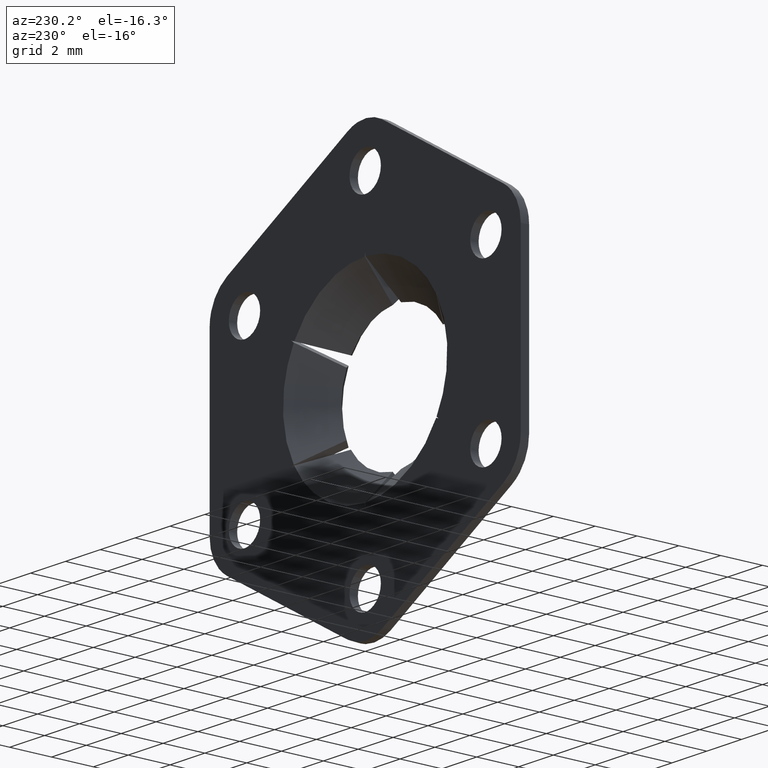
[diagram: clean part render]
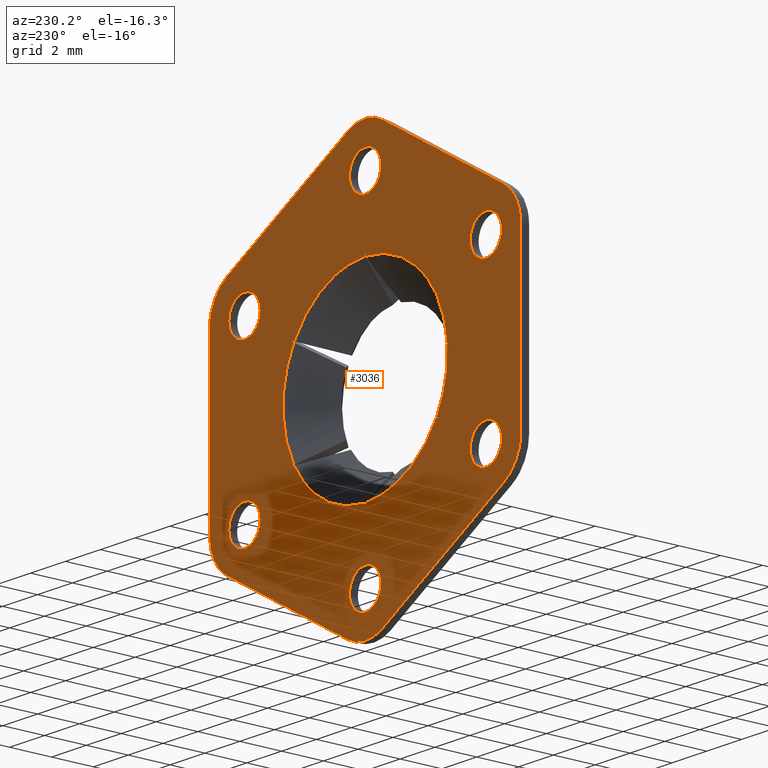
[diagram: same view with one face highlighted and labeled with its STEP entity id]
A machine part, auxiliary view. The second image highlights one B-rep face of the part: STEP entity #3036.
In plain terms, the highlighted face is a freeform B-spline surface patch.
Its self-contained STEP definition (entity closure, byte-faithful):
#36=CARTESIAN_POINT('',(7.591752890061908,4.076600E-017,4.608031211718937));
#37=VERTEX_POINT('',#36);
#43=CARTESIAN_POINT('',(7.828203230403200,0.0,4.000000234346843));
#44=VERTEX_POINT('',#43);
#45=CARTESIAN_POINT('',(7.828203230403200,0.0,4.000000234346843));
#46=CARTESIAN_POINT('',(7.828226303714586,5.361907E-018,4.079973889481491));
#47=CARTESIAN_POINT('',(7.807214864985792,1.585158E-017,4.236428944386033));
#48=CARTESIAN_POINT('',(7.721082646510603,2.974002E-017,4.443577131049415));
#49=CARTESIAN_POINT('',(7.636390975128075,3.750077E-017,4.559329825514233));
#50=CARTESIAN_POINT('',(7.591752890061908,4.076600E-017,4.608031211718937));
#51=B_SPLINE_CURVE_WITH_KNOTS('',3,(#45,#46,#47,#48,#49,#50),.UNSPECIFIED.,.F.,.U.,(4,1,1,4),(6.082399E-009,0.239916343688792,0.469399912768028,0.667591942724813),.UNSPECIFIED.);
#52=EDGE_CURVE('',#44,#37,#51,.T.);
#54=CARTESIAN_POINT('',(6.928203230403231,0.0,3.100000000264096));
#55=VERTEX_POINT('',#54);
#56=CARTESIAN_POINT('',(6.928203230403231,0.0,3.100000000264096));
#57=CARTESIAN_POINT('',(7.009200202013038,0.0,3.099974343736401));
#58=CARTESIAN_POINT('',(7.171173352917255,0.0,3.122011545478920));
#59=CARTESIAN_POINT('',(7.396557710784607,0.0,3.218596526401624));
#60=CARTESIAN_POINT('',(7.573482655878819,0.0,3.360221876556675));
#61=CARTESIAN_POINT('',(7.693217112072676,0.0,3.515636021474628));
#62=CARTESIAN_POINT('',(7.771307147974531,0.0,3.670765253618833));
#63=CARTESIAN_POINT('',(7.817668737169839,0.0,3.830649972684198));
#64=CARTESIAN_POINT('',(7.828207806149314,0.0,3.944776752768646));
#65=CARTESIAN_POINT('',(7.828203230403200,0.0,4.000000234346843));
#66=B_SPLINE_CURVE_WITH_KNOTS('',3,(#56,#57,#58,#59,#60,#61,#62,#63,#64,#65),.UNSPECIFIED.,.F.,.U.,(4,1,1,1,1,1,1,4),(0.000000027766262,0.242984109180347,0.485968517856268,0.728946563611677,0.916709146844662,1.071339280978085,1.248054781481872,1.413725696523559),.UNSPECIFIED.);
#67=EDGE_CURVE('',#55,#44,#66,.T.);
#69=CARTESIAN_POINT('',(6.264653570744552,1.821460E-017,3.391968788809254));
#70=VERTEX_POINT('',#69);
#71=CARTESIAN_POINT('',(6.264653570744552,1.821460E-017,3.391968788809254));
#72=CARTESIAN_POINT('',(6.314527965671008,1.684553E-017,3.337524955148006));
#73=CARTESIAN_POINT('',(6.439674756081360,1.341022E-017,3.230819742792361));
#74=CARTESIAN_POINT('',(6.667841585236905,7.146989E-018,3.125085262540399));
#75=CARTESIAN_POINT('',(6.842707922609193,2.346867E-018,3.099975680011092));
#76=CARTESIAN_POINT('',(6.928203230403231,0.0,3.100000000264096));
#77=B_SPLINE_CURVE_WITH_KNOTS('',3,(#71,#72,#73,#74,#75,#76),.UNSPECIFIED.,.F.,.U.,(4,1,1,4),(8.272962E-009,0.221508772568525,0.489648719146423,0.746133515676751),.UNSPECIFIED.);
#78=EDGE_CURVE('',#70,#55,#77,.T.);
#169=CARTESIAN_POINT('',(6.028203230403260,0.0,3.999999766181345));
#170=VERTEX_POINT('',#169);
#171=CARTESIAN_POINT('',(6.028203230403260,0.0,3.999999766181345));
#172=CARTESIAN_POINT('',(6.028130093634919,3.229339E-018,3.892199516854360));
#173=CARTESIAN_POINT('',(6.058542747506334,8.227222E-018,3.725362527811360));
#174=CARTESIAN_POINT('',(6.157428061960746,1.423569E-017,3.524790688751843));
#175=CARTESIAN_POINT('',(6.227064252123654,1.698599E-017,3.432981558750776));
#176=CARTESIAN_POINT('',(6.264653570744552,1.821460E-017,3.391968788809254));
#177=B_SPLINE_CURVE_WITH_KNOTS('',3,(#171,#172,#173,#174,#175,#176),.UNSPECIFIED.,.F.,.U.,(4,1,1,4),(6.081782E-009,0.323368925552720,0.500693955857128,0.667591942724812),.UNSPECIFIED.);
#178=EDGE_CURVE('',#170,#70,#177,.T.);
#180=CARTESIAN_POINT('',(6.928203230403231,0.0,4.900000000264095));
#181=VERTEX_POINT('',#180);
#182=CARTESIAN_POINT('',(6.928203230403231,0.0,4.900000000264095));
#183=CARTESIAN_POINT('',(6.828793367875496,0.0,4.900058111049996));
#184=CARTESIAN_POINT('',(6.666846583298053,0.0,4.872883822530298));
#185=CARTESIAN_POINT('',(6.468856534640187,0.0,4.780693777177579));
#186=CARTESIAN_POINT('',(6.313725357323717,0.0,4.667128834109668));
#187=CARTESIAN_POINT('',(6.193336716690165,0.0,4.530966411007047));
#188=CARTESIAN_POINT('',(6.094973663917792,0.0,4.357348575796756));
#189=CARTESIAN_POINT('',(6.040087144640501,0.0,4.184079914210815));
#190=CARTESIAN_POINT('',(6.028200528103738,0.0,4.055222595539417));
#191=CARTESIAN_POINT('',(6.028203230403260,0.0,3.999999766181345));
#192=B_SPLINE_CURVE_WITH_KNOTS('',3,(#182,#183,#184,#185,#186,#187,#188,#189,#190,#191),.UNSPECIFIED.,.F.,.U.,(4,1,1,1,1,1,1,4),(0.000000027770033,0.298207562280992,0.485968517858671,0.651640536808030,0.872533776876375,1.027159469077783,1.248054781482359,1.413725696523557),.UNSPECIFIED.);
#193=EDGE_CURVE('',#181,#170,#192,.T.);
#195=CARTESIAN_POINT('',(7.591752890061908,4.076600E-017,4.608031211718937));
#196=CARTESIAN_POINT('',(7.528775566729278,3.689691E-017,4.676834702884034));
#197=CARTESIAN_POINT('',(7.418063128604507,3.009515E-017,4.765085535586538));
#198=CARTESIAN_POINT('',(7.192400725409483,1.623130E-017,4.871446264298736));
#199=CARTESIAN_POINT('',(7.037034050511439,6.686157E-018,4.900103129612380));
#200=CARTESIAN_POINT('',(6.928203230403231,0.0,4.900000000264095));
#201=B_SPLINE_CURVE_WITH_KNOTS('',3,(#195,#196,#197,#198,#199,#200),.UNSPECIFIED.,.F.,.U.,(4,1,1,4),(8.272381E-009,0.279800207099282,0.419696351711573,0.746133515676750),.UNSPECIFIED.);
#202=EDGE_CURVE('',#37,#181,#201,.T.);
#239=CARTESIAN_POINT('',(0.663549659789859,-6.071532E-018,8.608031211713040));
#240=VERTEX_POINT('',#239);
#246=CARTESIAN_POINT('',(0.900000000131150,0.0,8.000000234340950));
#247=VERTEX_POINT('',#246);
#248=CARTESIAN_POINT('',(0.900000000131150,0.0,8.000000234340950));
#249=CARTESIAN_POINT('',(0.900036383603328,-8.680583E-019,8.086931570724715));
#250=CARTESIAN_POINT('',(0.880190719680678,-2.221871E-018,8.222508530476116));
#251=CARTESIAN_POINT('',(0.799272910767948,-4.299765E-018,8.430598334603765));
#252=CARTESIAN_POINT('',(0.722306524939986,-5.431789E-018,8.543964388938841));
#253=CARTESIAN_POINT('',(0.663549659789859,-6.071532E-018,8.608031211713040));
#254=B_SPLINE_CURVE_WITH_KNOTS('',3,(#248,#249,#250,#251,#252,#253),.UNSPECIFIED.,.F.,.U.,(4,1,1,4),(6.081780E-009,0.260778638901012,0.406813309907971,0.667591942724816),.UNSPECIFIED.);
#255=EDGE_CURVE('',#247,#240,#254,.T.);
#257=CARTESIAN_POINT('',(1.311804E-010,0.0,7.100000000258200));
#258=VERTEX_POINT('',#257);
#259=CARTESIAN_POINT('',(1.311804E-010,0.0,7.100000000258200));
#260=CARTESIAN_POINT('',(0.080996012322714,0.0,7.099975049281043));
#261=CARTESIAN_POINT('',(0.242974818309033,0.0,7.122008955398664));
#262=CARTESIAN_POINT('',(0.430781780634713,0.0,7.202509696703170));
#263=CARTESIAN_POINT('',(0.603493532361702,0.0,7.322564954549393));
#264=CARTESIAN_POINT('',(0.737734980733604,0.0,7.467064753624744));
#265=CARTESIAN_POINT('',(0.838985603618570,0.0,7.656555514775269));
#266=CARTESIAN_POINT('',(0.889464066262825,0.0,7.830650374746120));
#267=CARTESIAN_POINT('',(0.900004938679817,0.0,7.944776673103982));
#268=CARTESIAN_POINT('',(0.900000000131150,0.0,8.000000234340950));
#269=B_SPLINE_CURVE_WITH_KNOTS('',3,(#259,#260,#261,#262,#263,#264,#265,#266,#267,#268),.UNSPECIFIED.,.F.,.U.,(4,1,1,1,1,1,1,4),(0.000000027770838,0.242984109183982,0.485968517859080,0.607466950547594,0.872533776876687,1.071339280979073,1.248054781482304,1.413725696523545),.UNSPECIFIED.);
#270=EDGE_CURVE('',#258,#247,#269,.T.);
#272=CARTESIAN_POINT('',(-0.663549659527498,1.821460E-017,7.391968788803359));
#273=VERTEX_POINT('',#272);
#274=CARTESIAN_POINT('',(-0.663549659527498,1.821460E-017,7.391968788803359));
#275=CARTESIAN_POINT('',(-0.600573490494556,1.648589E-017,7.323164427149681));
#276=CARTESIAN_POINT('',(-0.486783280776631,1.336232E-017,7.232461851563873));
#277=CARTESIAN_POINT('',(-0.260318605475891,7.145808E-018,7.127512567533784));
#278=CARTESIAN_POINT('',(-0.104940425645456,2.880640E-018,7.099911376751241));
#279=CARTESIAN_POINT('',(1.311804E-010,0.0,7.100000000258200));
#280=B_SPLINE_CURVE_WITH_KNOTS('',3,(#274,#275,#276,#277,#278,#279),.UNSPECIFIED.,.F.,.U.,(4,1,1,4),(8.272651E-009,0.279800207099393,0.431356854696645,0.746133515676752),.UNSPECIFIED.);
#281=EDGE_CURVE('',#273,#258,#280,.T.);
#372=CARTESIAN_POINT('',(-0.899999999868789,0.0,7.999999766175449));
#373=VERTEX_POINT('',#372);
#374=CARTESIAN_POINT('',(-0.899999999868789,0.0,7.999999766175449));
#375=CARTESIAN_POINT('',(-0.900004994740617,1.666568E-018,7.944367187007805));
#376=CARTESIAN_POINT('',(-0.889006013258594,5.207923E-018,7.826151333351548));
#377=CARTESIAN_POINT('',(-0.825099043394559,1.163141E-017,7.611725455320543));
#378=CARTESIAN_POINT('',(-0.734091115296245,1.591213E-017,7.468828490830533));
#379=CARTESIAN_POINT('',(-0.663549659527498,1.821460E-017,7.391968788803359));
#380=B_SPLINE_CURVE_WITH_KNOTS('',3,(#374,#375,#376,#377,#378,#379),.UNSPECIFIED.,.F.,.U.,(4,1,1,4),(6.081824E-009,0.166897987535654,0.354656526084924,0.667591942724811),.UNSPECIFIED.);
#381=EDGE_CURVE('',#373,#273,#380,.T.);
#383=CARTESIAN_POINT('',(1.311804E-010,0.0,8.900000000258199));
#384=VERTEX_POINT('',#383);
#385=CARTESIAN_POINT('',(1.311804E-010,0.0,8.900000000258199));
#386=CARTESIAN_POINT('',(-0.099410252276266,0.0,8.900059071814132));
#387=CARTESIAN_POINT('',(-0.261354937998547,0.0,8.872880305435579));
#388=CARTESIAN_POINT('',(-0.469420080120064,0.0,8.776012729051466));
#389=CARTESIAN_POINT('',(-0.605016838883685,0.0,8.672843776159761));
#390=CARTESIAN_POINT('',(-0.714780353702386,0.0,8.553209783012042));
#391=CARTESIAN_POINT('',(-0.800259898774316,0.0,8.423576720045290));
#392=CARTESIAN_POINT('',(-0.878133478280837,0.0,8.235599407023075));
#393=CARTESIAN_POINT('',(-0.900036893071894,0.0,8.088361045971118));
#394=CARTESIAN_POINT('',(-0.899999999868789,0.0,7.999999766175449));
#395=B_SPLINE_CURVE_WITH_KNOTS('',3,(#385,#386,#387,#388,#389,#390,#391,#392,#393,#394),.UNSPECIFIED.,.F.,.U.,(4,1,1,1,1,1,1,4),(0.000000027770339,0.298207562281062,0.485968517858708,0.684779224785175,0.806258816291269,0.971934389374804,1.148654169148012,1.413725696523546),.UNSPECIFIED.);
#396=EDGE_CURVE('',#384,#373,#395,.T.);
#398=CARTESIAN_POINT('',(0.663549659789859,-6.071532E-018,8.608031211713040));
#399=CARTESIAN_POINT('',(0.611055432850996,-5.591206E-018,8.665349510737714));
#400=CARTESIAN_POINT('',(0.509086234941145,-4.658180E-018,8.751104237003203));
#401=CARTESIAN_POINT('',(0.356734998661933,-3.264154E-018,8.830269655613433));
#402=CARTESIAN_POINT('',(0.194295111418819,-1.777816E-018,8.884801263457058));
#403=CARTESIAN_POINT('',(0.077724879170556,-7.111888E-019,8.900021594727663));
#404=CARTESIAN_POINT('',(1.311804E-010,0.0,8.900000000258199));
#405=B_SPLINE_CURVE_WITH_KNOTS('',3,(#398,#399,#400,#401,#402,#403,#404),.UNSPECIFIED.,.F.,.U.,(4,1,1,1,4),(8.272544E-009,0.233167996927774,0.396380162253020,0.512965527026716,0.746133515676751),.UNSPECIFIED.);
#406=EDGE_CURVE('',#240,#384,#405,.T.);
#443=CARTESIAN_POINT('',(-6.264653570175522,1.821460E-017,4.608031210245241));
#444=VERTEX_POINT('',#443);
#450=CARTESIAN_POINT('',(-6.028203229834231,0.0,4.000000232873148));
#451=VERTEX_POINT('',#450);
#452=CARTESIAN_POINT('',(-6.028203229834231,0.0,4.000000232873148));
#453=CARTESIAN_POINT('',(-6.028139515492588,2.916813E-018,4.097367897399532));
#454=CARTESIAN_POINT('',(-6.051574041359181,7.186077E-018,4.239882452400351));
#455=CARTESIAN_POINT('',(-6.138457560671259,1.334397E-017,4.445442334055876));
#456=CARTESIAN_POINT('',(-6.210602850755835,1.644879E-017,4.549085797519957));
#457=CARTESIAN_POINT('',(-6.264653570175522,1.821460E-017,4.608031210245241));
#458=B_SPLINE_CURVE_WITH_KNOTS('',3,(#452,#453,#454,#455,#456,#457),.UNSPECIFIED.,.F.,.U.,(4,1,1,4),(6.081437E-009,0.292073963886271,0.427675605114187,0.667591942724817),.UNSPECIFIED.);
#459=EDGE_CURVE('',#451,#444,#458,.T.);
#461=CARTESIAN_POINT('',(-6.928203229834200,0.0,3.099999998790400));
#462=VERTEX_POINT('',#461);
#463=CARTESIAN_POINT('',(-6.928203229834200,0.0,3.099999998790400));
#464=CARTESIAN_POINT('',(-6.828797073767281,0.0,3.099947257377678));
#465=CARTESIAN_POINT('',(-6.648432418096616,0.0,3.130187645367318));
#466=CARTESIAN_POINT('',(-6.429418098877408,0.0,3.240448562621806));
#467=CARTESIAN_POINT('',(-6.285730706599413,0.0,3.362895117395828));
#468=CARTESIAN_POINT('',(-6.182686701331696,0.0,3.488452457703103));
#469=CARTESIAN_POINT('',(-6.105317044069849,0.0,3.623088948112127));
#470=CARTESIAN_POINT('',(-6.044108530390512,0.0,3.797522331387572));
#471=CARTESIAN_POINT('',(-6.028184067994329,0.0,3.926367760070296));
#472=CARTESIAN_POINT('',(-6.028203229834231,0.0,4.000000232873148));
#473=B_SPLINE_CURVE_WITH_KNOTS('',3,(#463,#464,#465,#466,#467,#468,#469,#470,#471,#472),.UNSPECIFIED.,.F.,.U.,(4,1,1,1,1,1,1,4),(0.000000027770395,0.298207562281248,0.541192824811446,0.728946563613698,0.861483921735026,1.027159469077992,1.192831770812571,1.413725696523545),.UNSPECIFIED.);
#474=EDGE_CURVE('',#462,#451,#473,.T.);
#476=CARTESIAN_POINT('',(-7.591752889492879,4.076600E-017,3.391968787335558));
#477=VERTEX_POINT('',#476);
#478=CARTESIAN_POINT('',(-7.591752889492879,4.076600E-017,3.391968787335558));
#479=CARTESIAN_POINT('',(-7.518302047017945,3.625346E-017,3.311670129914432));
#480=CARTESIAN_POINT('',(-7.370150024161867,2.715155E-017,3.199786547191172));
#481=CARTESIAN_POINT('',(-7.134161885685534,1.265333E-017,3.115467283271009));
#482=CARTESIAN_POINT('',(-6.994267147218354,4.058719E-018,3.099989482479001));
#483=CARTESIAN_POINT('',(-6.928203229834200,0.0,3.099999998790400));
#484=B_SPLINE_CURVE_WITH_KNOTS('',3,(#478,#479,#480,#481,#482,#483),.UNSPECIFIED.,.F.,.U.,(4,1,1,4),(8.272227E-009,0.326437172242251,0.547941544007442,0.746133515676754),.UNSPECIFIED.);
#485=EDGE_CURVE('',#477,#462,#484,.T.);
#577=CARTESIAN_POINT('',(-7.828203229834171,0.0,3.999999764707650));
#578=VERTEX_POINT('',#577);
#579=CARTESIAN_POINT('',(-7.828203229834171,0.0,3.999999764707650));
#580=CARTESIAN_POINT('',(-7.828232561707650,5.362042E-018,3.920024099144150));
#581=CARTESIAN_POINT('',(-7.812799199462688,1.305367E-017,3.805302391370699));
#582=CARTESIAN_POINT('',(-7.741747676259862,2.721951E-017,3.594016646711108));
#583=CARTESIAN_POINT('',(-7.664649350911640,3.544099E-017,3.471392052397096));
#584=CARTESIAN_POINT('',(-7.591752889492879,4.076600E-017,3.391968787335558));
#585=B_SPLINE_CURVE_WITH_KNOTS('',3,(#579,#580,#581,#582,#583,#584),.UNSPECIFIED.,.F.,.U.,(4,1,1,4),(6.081818E-009,0.239916343688644,0.344223023249606,0.667591942724814),.UNSPECIFIED.);
#586=EDGE_CURVE('',#578,#477,#585,.T.);
#588=CARTESIAN_POINT('',(-6.928203229834200,0.0,4.899999998790400));
#589=VERTEX_POINT('',#588);
#590=CARTESIAN_POINT('',(-6.928203229834200,0.0,4.899999998790400));
#591=CARTESIAN_POINT('',(-7.027614320416054,0.0,4.900057686558056));
#592=CARTESIAN_POINT('',(-7.174834332604654,0.0,4.875352519905449));
#593=CARTESIAN_POINT('',(-7.357650424685486,0.0,4.795623096818295));
#594=CARTESIAN_POINT('',(-7.475344316268823,0.0,4.719053151746222));
#595=CARTESIAN_POINT('',(-7.607333461136070,0.0,4.600936229496129));
#596=CARTESIAN_POINT('',(-7.717152264970999,0.0,4.450931140301199));
#597=CARTESIAN_POINT('',(-7.806334226250788,0.0,4.235598638172008));
#598=CARTESIAN_POINT('',(-7.828240989330539,0.0,4.088360613727382));
#599=CARTESIAN_POINT('',(-7.828203229834171,0.0,3.999999764707650));
#600=B_SPLINE_CURVE_WITH_KNOTS('',3,(#590,#591,#592,#593,#594,#595,#596,#597,#598,#599),.UNSPECIFIED.,.F.,.U.,(4,1,1,1,1,1,1,4),(0.000000027766078,0.298207562277850,0.441791596325794,0.596416978887256,0.717899139419897,0.971934389373986,1.148654169147614,1.413725696523561),.UNSPECIFIED.);
#601=EDGE_CURVE('',#589,#578,#600,.T.);
#603=CARTESIAN_POINT('',(-6.264653570175522,1.821460E-017,4.608031210245241));
#604=CARTESIAN_POINT('',(-6.309276712429864,1.698968E-017,4.656747525210337));
#605=CARTESIAN_POINT('',(-6.397554229851052,1.456644E-017,4.733976136873334));
#606=CARTESIAN_POINT('',(-6.549446075285329,1.039697E-017,4.821880922001681));
#607=CARTESIAN_POINT('',(-6.722248446569147,5.653508E-018,4.883649369670212));
#608=CARTESIAN_POINT('',(-6.854366315485861,2.026841E-018,4.900016319102174));
#609=CARTESIAN_POINT('',(-6.928203229834200,0.0,4.899999998790400));
#610=B_SPLINE_CURVE_WITH_KNOTS('',3,(#603,#604,#605,#606,#607,#608,#609),.UNSPECIFIED.,.F.,.U.,(4,1,1,1,4),(8.272561E-009,0.198191979946695,0.349753361703568,0.524624751384262,0.746133515676751),.UNSPECIFIED.);
#611=EDGE_CURVE('',#444,#589,#610,.T.);
#648=CARTESIAN_POINT('',(-6.264653569310792,1.821460E-017,-3.391968788833170));
#649=VERTEX_POINT('',#648);
#655=CARTESIAN_POINT('',(-6.028203228969501,0.0,-3.999999766205264));
#656=VERTEX_POINT('',#655);
#657=CARTESIAN_POINT('',(-6.028203228969501,0.0,-3.999999766205264));
#658=CARTESIAN_POINT('',(-6.028159402752834,2.708388E-018,-3.909589628787769));
#659=CARTESIAN_POINT('',(-6.047225650441207,6.457280E-018,-3.784445898501451));
#660=CARTESIAN_POINT('',(-6.125606974663613,1.270853E-017,-3.575769775986319));
#661=CARTESIAN_POINT('',(-6.198824104429429,1.606538E-017,-3.463712864679082));
#662=CARTESIAN_POINT('',(-6.264653569310792,1.821460E-017,-3.391968788833170));
#663=B_SPLINE_CURVE_WITH_KNOTS('',3,(#657,#658,#659,#660,#661,#662),.UNSPECIFIED.,.F.,.U.,(4,1,1,4),(6.081591E-009,0.271211822270903,0.375517984913533,0.667591942724820),.UNSPECIFIED.);
#664=EDGE_CURVE('',#656,#649,#663,.T.);
#666=CARTESIAN_POINT('',(-6.928203228969470,0.0,-4.900000000288010));
#667=VERTEX_POINT('',#666);
#668=CARTESIAN_POINT('',(-6.928203228969470,0.0,-4.900000000288010));
#669=CARTESIAN_POINT('',(-6.828796133449349,0.0,-4.900059241437144));
#670=CARTESIAN_POINT('',(-6.648433469342184,0.0,-4.869804401548783));
#671=CARTESIAN_POINT('',(-6.439370346822650,0.0,-4.764562755811157));
#672=CARTESIAN_POINT('',(-6.305136501135786,0.0,-4.654359528506936));
#673=CARTESIAN_POINT('',(-6.196830636797871,0.0,-4.533403360469902));
#674=CARTESIAN_POINT('',(-6.114060394195139,0.0,-4.397202821919962));
#675=CARTESIAN_POINT('',(-6.045722680002704,0.0,-4.209834531143814));
#676=CARTESIAN_POINT('',(-6.028173238127176,0.0,-4.080997066211022));
#677=CARTESIAN_POINT('',(-6.028203228969501,0.0,-3.999999766205264));
#678=B_SPLINE_CURVE_WITH_KNOTS('',3,(#668,#669,#670,#671,#672,#673,#674,#675,#676,#677),.UNSPECIFIED.,.F.,.U.,(4,1,1,1,1,1,1,4),(0.000000027768896,0.298207562279927,0.541192824810404,0.695826477561995,0.817309461464141,1.027159469077636,1.170742960576889,1.413725696523555),.UNSPECIFIED.);
#679=EDGE_CURVE('',#667,#656,#678,.T.);
#681=CARTESIAN_POINT('',(-7.591752888628148,4.076600E-017,-4.608031211742851));
#682=VERTEX_POINT('',#681);
#683=CARTESIAN_POINT('',(-7.591752888628148,4.076600E-017,-4.608031211742851));
#684=CARTESIAN_POINT('',(-7.518302259486551,3.625347E-017,-4.688337827144735));
#685=CARTESIAN_POINT('',(-7.392212423079379,2.850698E-017,-4.783526339682695));
#686=CARTESIAN_POINT('',(-7.161339519462989,1.432302E-017,-4.878051526755123));
#687=CARTESIAN_POINT('',(-7.021476340849898,5.730350E-018,-4.900045787867019));
#688=CARTESIAN_POINT('',(-6.928203228969470,0.0,-4.900000000288010));
#689=B_SPLINE_CURVE_WITH_KNOTS('',3,(#683,#684,#685,#686,#687,#688),.UNSPECIFIED.,.F.,.U.,(4,1,1,4),(8.272563E-009,0.326437172242461,0.466333316853932,0.746133515676751),.UNSPECIFIED.);
#690=EDGE_CURVE('',#682,#667,#689,.T.);
#780=CARTESIAN_POINT('',(-7.828203228969439,0.0,-4.000000234370758));
#781=VERTEX_POINT('',#780);
#782=CARTESIAN_POINT('',(-7.828203228969439,0.0,-4.000000234370758));
#783=CARTESIAN_POINT('',(-7.828223327726835,5.361763E-018,-4.079971727814534));
#784=CARTESIAN_POINT('',(-7.805834355681129,1.655160E-017,-4.246869837150593));
#785=CARTESIAN_POINT('',(-7.715897656004421,3.036948E-017,-4.452965555842864));
#786=CARTESIAN_POINT('',(-7.629337936837647,3.801613E-017,-4.567016544961758));
#787=CARTESIAN_POINT('',(-7.591752888628148,4.076600E-017,-4.608031211742851));
#788=B_SPLINE_CURVE_WITH_KNOTS('',3,(#782,#783,#784,#785,#786,#787),.UNSPECIFIED.,.F.,.U.,(4,1,1,4),(6.081249E-009,0.239916343688255,0.500693955856976,0.667591942724820),.UNSPECIFIED.);
#789=EDGE_CURVE('',#781,#682,#788,.T.);
#791=CARTESIAN_POINT('',(-6.928203228969470,0.0,-3.100000000288011));
#792=VERTEX_POINT('',#791);
#793=CARTESIAN_POINT('',(-6.928203228969470,0.0,-3.100000000288011));
#794=CARTESIAN_POINT('',(-7.027615468970285,0.0,-3.099936556571806));
#795=CARTESIAN_POINT('',(-7.189552724182543,0.0,-3.127128146081093));
#796=CARTESIAN_POINT('',(-7.411053166563444,0.0,-3.230222321606797));
#797=CARTESIAN_POINT('',(-7.558976666200407,0.0,-3.348611917305798));
#798=CARTESIAN_POINT('',(-7.683092426725410,0.0,-3.499865424446319));
#799=CARTESIAN_POINT('',(-7.766164224663795,0.0,-3.652995412264843));
#800=CARTESIAN_POINT('',(-7.817667422638837,0.0,-3.830650452444444));
#801=CARTESIAN_POINT('',(-7.828207821643209,0.0,-3.944776796005251));
#802=CARTESIAN_POINT('',(-7.828203228969439,0.0,-4.000000234370758));
#803=B_SPLINE_CURVE_WITH_KNOTS('',3,(#793,#794,#795,#796,#797,#798,#799,#800,#801,#802),.UNSPECIFIED.,.F.,.U.,(4,1,1,1,1,1,1,4),(0.000000027765409,0.298207562277386,0.485968517855748,0.728946563611428,0.861483921733217,1.071339280978080,1.248054781481867,1.413725696523559),.UNSPECIFIED.);
#804=EDGE_CURVE('',#792,#781,#803,.T.);
#806=CARTESIAN_POINT('',(-6.264653569310792,1.821460E-017,-3.391968788833170));
#807=CARTESIAN_POINT('',(-6.309277676994372,1.698965E-017,-3.343253484062113));
#808=CARTESIAN_POINT('',(-6.397553272121876,1.456647E-017,-3.266022944715402));
#809=CARTESIAN_POINT('',(-6.556195828226693,1.021169E-017,-3.174208368961282));
#810=CARTESIAN_POINT('',(-6.730016144393469,5.440283E-018,-3.114607525740318));
#811=CARTESIAN_POINT('',(-6.862139233793680,1.813472E-018,-3.099990356255228));
#812=CARTESIAN_POINT('',(-6.928203228969470,0.0,-3.100000000288011));
#813=B_SPLINE_CURVE_WITH_KNOTS('',3,(#806,#807,#808,#809,#810,#811,#812),.UNSPECIFIED.,.F.,.U.,(4,1,1,1,4),(8.271880E-009,0.198191979946309,0.349753361703344,0.547941544007401,0.746133515676754),.UNSPECIFIED.);
#814=EDGE_CURVE('',#649,#792,#813,.T.);
#851=CARTESIAN_POINT('',(0.663549660961358,1.821460E-017,-7.391968788827430));
#852=VERTEX_POINT('',#851);
#858=CARTESIAN_POINT('',(0.900000001302650,0.0,-7.999999766199524));
#859=VERTEX_POINT('',#858);
#860=CARTESIAN_POINT('',(0.900000001302650,0.0,-7.999999766199524));
#861=CARTESIAN_POINT('',(0.900035463152435,2.604150E-018,-7.913069258561699));
#862=CARTESIAN_POINT('',(0.879176395680994,6.873967E-018,-7.770536247456755));
#863=CARTESIAN_POINT('',(0.795765949955754,1.308529E-017,-7.563192793061869));
#864=CARTESIAN_POINT('',(0.717597005010089,1.644875E-017,-7.450915405553404));
#865=CARTESIAN_POINT('',(0.663549660961358,1.821460E-017,-7.391968788827430));
#866=B_SPLINE_CURVE_WITH_KNOTS('',3,(#860,#861,#862,#863,#864,#865),.UNSPECIFIED.,.F.,.U.,(4,1,1,4),(6.081668E-009,0.260778638900849,0.427675605114229,0.667591942724819),.UNSPECIFIED.);
#867=EDGE_CURVE('',#859,#852,#866,.T.);
#869=CARTESIAN_POINT('',(1.302681E-009,0.0,-8.900000000282271));
#870=VERTEX_POINT('',#869);
#871=CARTESIAN_POINT('',(1.302681E-009,0.0,-8.900000000282271));
#872=CARTESIAN_POINT('',(0.051540239338821,0.0,-8.900001960317155));
#873=CARTESIAN_POINT('',(0.176714845184459,0.0,-8.889230726103394));
#874=CARTESIAN_POINT('',(0.361300056268748,0.0,-8.833249959725375));
#875=CARTESIAN_POINT('',(0.518104780798364,0.0,-8.741839032005002));
#876=CARTESIAN_POINT('',(0.658554913027877,0.0,-8.622193363481237));
#877=CARTESIAN_POINT('',(0.762128969729964,0.0,-8.491140749591642));
#878=CARTESIAN_POINT('',(0.844131823726730,0.0,-8.325678722326405));
#879=CARTESIAN_POINT('',(0.889465777557475,0.0,-8.169350177606242));
#880=CARTESIAN_POINT('',(0.900004533473815,0.0,-8.055223239159588));
#881=CARTESIAN_POINT('',(0.900000001302650,0.0,-7.999999766199524));
#882=B_SPLINE_CURVE_WITH_KNOTS('',3,(#871,#872,#873,#874,#875,#876,#877,#878,#879,#880,#881),.UNSPECIFIED.,.F.,.U.,(4,1,1,1,1,1,1,1,4),(0.000000027770935,0.154622342060940,0.375521199501714,0.574330550793838,0.695826477562860,0.927756787427396,1.071339280979024,1.248054781482316,1.413725696523545),.UNSPECIFIED.);
#883=EDGE_CURVE('',#870,#859,#882,.T.);
#885=CARTESIAN_POINT('',(-0.663549658355997,1.821460E-017,-8.608031211737110));
#886=VERTEX_POINT('',#885);
#887=CARTESIAN_POINT('',(-0.663549658355997,1.821460E-017,-8.608031211737110));
#888=CARTESIAN_POINT('',(-0.605812969869717,1.662971E-017,-8.671092389085045));
#889=CARTESIAN_POINT('',(-0.505585662956049,1.387845E-017,-8.753153954324338));
#890=CARTESIAN_POINT('',(-0.335623311754360,9.212940E-018,-8.840092884135427));
#891=CARTESIAN_POINT('',(-0.178759972987028,4.907004E-018,-8.888256945044484));
#892=CARTESIAN_POINT('',(-0.058291470169622,1.600115E-018,-8.900006745457493));
#893=CARTESIAN_POINT('',(1.302681E-009,0.0,-8.900000000282271));
#894=B_SPLINE_CURVE_WITH_KNOTS('',3,(#887,#888,#889,#890,#891,#892,#893),.UNSPECIFIED.,.F.,.U.,(4,1,1,1,4),(8.272691E-009,0.256484804808344,0.384720711496524,0.571258733648810,0.746133515676752),.UNSPECIFIED.);
#895=EDGE_CURVE('',#886,#870,#894,.T.);
#987=CARTESIAN_POINT('',(-0.899999998697289,0.0,-8.000000234365018));
#988=VERTEX_POINT('',#987);
#989=CARTESIAN_POINT('',(-0.899999998697289,0.0,-8.000000234365018));
#990=CARTESIAN_POINT('',(-0.900038482899852,2.604158E-018,-8.086930994006261));
#991=CARTESIAN_POINT('',(-0.880191902956274,6.665665E-018,-8.222510310814780));
#992=CARTESIAN_POINT('',(-0.799270424592110,1.289929E-017,-8.430598269055452));
#993=CARTESIAN_POINT('',(-0.722305997713572,1.629533E-017,-8.543963153906235));
#994=CARTESIAN_POINT('',(-0.663549658355997,1.821460E-017,-8.608031211737110));
#995=B_SPLINE_CURVE_WITH_KNOTS('',3,(#989,#990,#991,#992,#993,#994),.UNSPECIFIED.,.F.,.U.,(4,1,1,4),(6.081832E-009,0.260778638901020,0.406813309907927,0.667591942724813),.UNSPECIFIED.);
#996=EDGE_CURVE('',#988,#886,#995,.T.);
#998=CARTESIAN_POINT('',(1.302681E-009,0.0,-7.100000000282271));
#999=VERTEX_POINT('',#998);
#1000=CARTESIAN_POINT('',(1.302681E-009,0.0,-7.100000000282271));
#1001=CARTESIAN_POINT('',(-0.069949892536555,0.0,-7.099984629215534));
#1002=CARTESIAN_POINT('',(-0.195116126702172,0.0,-7.114668908622756));
#1003=CARTESIAN_POINT('',(-0.349264323963180,0.0,-7.166645734757671));
#1004=CARTESIAN_POINT('',(-0.480227501280097,0.0,-7.234596399424571));
#1005=CARTESIAN_POINT('',(-0.599551723859713,0.0,-7.321957657891175));
#1006=CARTESIAN_POINT('',(-0.723667900078579,0.0,-7.453925083561526));
#1007=CARTESIAN_POINT('',(-0.817998148019067,0.0,-7.609130648552294));
#1008=CARTESIAN_POINT('',(-0.884093791794344,0.0,-7.797522889177357));
#1009=CARTESIAN_POINT('',(-0.900018905398525,0.0,-7.926367902249624));
#1010=CARTESIAN_POINT('',(-0.899999998697289,0.0,-8.000000234365018));
#1011=B_SPLINE_CURVE_WITH_KNOTS('',3,(#1000,#1001,#1002,#1003,#1004,#1005,#1006,#1007,#1008,#1009,#1010),.UNSPECIFIED.,.F.,.U.,(4,1,1,1,1,1,1,1,4),(0.000000027768313,0.209847310141810,0.375521199500064,0.485968517857692,0.651640536807354,0.817309461464125,1.027159469077607,1.192831770812354,1.413725696523545),.UNSPECIFIED.);
#1012=EDGE_CURVE('',#999,#988,#1011,.T.);
#1014=CARTESIAN_POINT('',(0.663549660961358,1.821460E-017,-7.391968788827430));
#1015=CARTESIAN_POINT('',(0.600566870767220,1.648570E-017,-7.323176040688036));
#1016=CARTESIAN_POINT('',(0.456046794914949,1.251859E-017,-7.207903933498503));
#1017=CARTESIAN_POINT('',(0.221513377712808,6.080595E-018,-7.117157374623225));
#1018=CARTESIAN_POINT('',(0.066061978087376,1.813417E-018,-7.099995587851049));
#1019=CARTESIAN_POINT('',(1.302681E-009,0.0,-7.100000000282271));
#1020=B_SPLINE_CURVE_WITH_KNOTS('',3,(#1014,#1015,#1016,#1017,#1018,#1019),.UNSPECIFIED.,.F.,.U.,(4,1,1,4),(8.272608E-009,0.279800207099372,0.547941544007534,0.746133515676751),.UNSPECIFIED.);
#1021=EDGE_CURVE('',#852,#999,#1020,.T.);
#1058=CARTESIAN_POINT('',(7.591752891233418,-5.204170E-018,-3.391968788833269));
#1059=VERTEX_POINT('',#1058);
#1065=CARTESIAN_POINT('',(7.828203231574711,0.0,-3.999999766205364));
#1066=VERTEX_POINT('',#1065);
#1067=CARTESIAN_POINT('',(7.828203231574711,0.0,-3.999999766205364));
#1068=CARTESIAN_POINT('',(7.828215780612131,-5.654502E-019,-3.933935195766865));
#1069=CARTESIAN_POINT('',(7.815122124235458,-1.577224E-018,-3.815724248116390));
#1070=CARTESIAN_POINT('',(7.747612607165431,-3.399718E-018,-3.602792561849588));
#1071=CARTESIAN_POINT('',(7.662291094116589,-4.546301E-018,-3.468831207924896));
#1072=CARTESIAN_POINT('',(7.591752891233418,-5.204170E-018,-3.391968788833269));
#1073=B_SPLINE_CURVE_WITH_KNOTS('',3,(#1067,#1068,#1069,#1070,#1071,#1072),.UNSPECIFIED.,.F.,.U.,(4,1,1,4),(6.081878E-009,0.198192036033356,0.354656526084892,0.667591942724816),.UNSPECIFIED.);
#1074=EDGE_CURVE('',#1066,#1059,#1073,.T.);
#1076=CARTESIAN_POINT('',(6.928203231574741,0.0,-4.900000000288109));
#1077=VERTEX_POINT('',#1076);
#1078=CARTESIAN_POINT('',(6.928203231574741,0.0,-4.900000000288109));
#1079=CARTESIAN_POINT('',(7.027614253389390,0.0,-4.900061934653415));
#1080=CARTESIAN_POINT('',(7.189556816038302,0.0,-4.872876879449033));
#1081=CARTESIAN_POINT('',(7.400981653041901,0.0,-4.774452586719463));
#1082=CARTESIAN_POINT('',(7.538974192674429,0.0,-4.668118648253741));
#1083=CARTESIAN_POINT('',(7.647258501960772,0.0,-4.547143127348140));
#1084=CARTESIAN_POINT('',(7.729877471992562,0.0,-4.420155576833334));
#1085=CARTESIAN_POINT('',(7.806338441459195,0.0,-4.235600715937095));
#1086=CARTESIAN_POINT('',(7.828239497723655,0.0,-4.088360516357272));
#1087=CARTESIAN_POINT('',(7.828203231574711,0.0,-3.999999766205364));
#1088=B_SPLINE_CURVE_WITH_KNOTS('',3,(#1078,#1079,#1080,#1081,#1082,#1083,#1084,#1085,#1086,#1087),.UNSPECIFIED.,.F.,.U.,(4,1,1,1,1,1,1,4),(0.000000027766750,0.298207562278426,0.485968517856555,0.695826477560980,0.817309461463236,0.971934389374119,1.148654169147659,1.413725696523560),.UNSPECIFIED.);
#1089=EDGE_CURVE('',#1077,#1066,#1088,.T.);
#1091=CARTESIAN_POINT('',(6.264653571916063,-5.204170E-018,-4.608031211742952));
#1092=VERTEX_POINT('',#1091);
#1093=CARTESIAN_POINT('',(6.264653571916063,-5.204170E-018,-4.608031211742952));
#1094=CARTESIAN_POINT('',(6.314523676458056,-4.813043E-018,-4.662482087974342));
#1095=CARTESIAN_POINT('',(6.415851161728670,-4.018339E-018,-4.748828855544272));
#1096=CARTESIAN_POINT('',(6.571227684269030,-2.799733E-018,-4.830856649125427));
#1097=CARTESIAN_POINT('',(6.737792951228406,-1.493374E-018,-4.885568201620883));
#1098=CARTESIAN_POINT('',(6.854365263621930,-5.791057E-019,-4.900017863311537));
#1099=CARTESIAN_POINT('',(6.928203231574741,0.0,-4.900000000288109));
#1100=B_SPLINE_CURVE_WITH_KNOTS('',3,(#1093,#1094,#1095,#1096,#1097,#1098,#1099),.UNSPECIFIED.,.F.,.U.,(4,1,1,1,4),(8.272916E-009,0.221508772568462,0.396380162253151,0.524624751384383,0.746133515676746),.UNSPECIFIED.);
#1101=EDGE_CURVE('',#1092,#1077,#1100,.T.);
#1194=CARTESIAN_POINT('',(6.028203231574770,0.0,-4.000000234370857));
#1195=VERTEX_POINT('',#1194);
#1196=CARTESIAN_POINT('',(6.028203231574770,0.0,-4.000000234370857));
#1197=CARTESIAN_POINT('',(6.028121465513167,-8.929339E-019,-4.104326471775581));
#1198=CARTESIAN_POINT('',(6.052043758715489,-2.053096E-018,-4.239874434735168));
#1199=CARTESIAN_POINT('',(6.138802261933130,-3.809913E-018,-4.445132692236686));
#1200=CARTESIAN_POINT('',(6.205895017337872,-4.655821E-018,-4.543964575771934));
#1201=CARTESIAN_POINT('',(6.264653571916063,-5.204170E-018,-4.608031211742952));
#1202=B_SPLINE_CURVE_WITH_KNOTS('',3,(#1196,#1197,#1198,#1199,#1200,#1201),.UNSPECIFIED.,.F.,.U.,(4,1,1,4),(6.081215E-009,0.312935422714721,0.406813309907815,0.667591942724819),.UNSPECIFIED.);
#1203=EDGE_CURVE('',#1195,#1092,#1202,.T.);
#1205=CARTESIAN_POINT('',(6.928203231574741,0.0,-3.100000000288110));
#1206=VERTEX_POINT('',#1205);
#1207=CARTESIAN_POINT('',(6.928203231574741,0.0,-3.100000000288110));
#1208=CARTESIAN_POINT('',(6.847205220584779,0.0,-3.099972956971317));
#1209=CARTESIAN_POINT('',(6.722050351388473,0.0,-3.117018087250741));
#1210=CARTESIAN_POINT('',(6.548257679737111,0.0,-3.179203001403018));
#1211=CARTESIAN_POINT('',(6.419509033153125,0.0,-3.252140881312767));
#1212=CARTESIAN_POINT('',(6.293951692583509,0.0,-3.355184939002108));
#1213=CARTESIAN_POINT('',(6.180377762080182,0.0,-3.486830881988184));
#1214=CARTESIAN_POINT('',(6.090242508830697,0.0,-3.652996170254287));
#1215=CARTESIAN_POINT('',(6.038738936920390,0.0,-3.830650269116330));
#1216=CARTESIAN_POINT('',(6.028198677380516,0.0,-3.944776824836476));
#1217=CARTESIAN_POINT('',(6.028203231574770,0.0,-4.000000234370857));
#1218=B_SPLINE_CURVE_WITH_KNOTS('',3,(#1207,#1208,#1209,#1210,#1211,#1212,#1213,#1214,#1215,#1216,#1217),.UNSPECIFIED.,.F.,.U.,(4,1,1,1,1,1,1,1,4),(0.000000027772181,0.242984109185190,0.375521199502829,0.552241920160883,0.684779224786424,0.861483921735731,1.071339280979608,1.248054781482611,1.413725696523533),.UNSPECIFIED.);
#1219=EDGE_CURVE('',#1206,#1195,#1218,.T.);
#1221=CARTESIAN_POINT('',(7.591752891233418,-5.204170E-018,-3.391968788833269));
#1222=CARTESIAN_POINT('',(7.552376602824879,-4.895345E-018,-3.348987370368426));
#1223=CARTESIAN_POINT('',(7.462326605405596,-4.189090E-018,-3.268107237491482));
#1224=CARTESIAN_POINT('',(7.297261510687662,-2.894497E-018,-3.171131583350100));
#1225=CARTESIAN_POINT('',(7.114733548131773,-1.462943E-018,-3.112493118000753));
#1226=CARTESIAN_POINT('',(6.986494468719603,-4.571738E-019,-3.099994853614599));
#1227=CARTESIAN_POINT('',(6.928203231574741,0.0,-3.100000000288110));
#1228=B_SPLINE_CURVE_WITH_KNOTS('',3,(#1221,#1222,#1223,#1224,#1225,#1226,#1227),.UNSPECIFIED.,.F.,.U.,(4,1,1,1,4),(8.273020E-009,0.174874790305735,0.361412812455323,0.571258733648825,0.746133515676751),.UNSPECIFIED.);
#1229=EDGE_CURVE('',#1059,#1206,#1228,.T.);
#2073=CARTESIAN_POINT('',(-8.928203231628730,0.0,4.000000000709535));
#2074=VERTEX_POINT('',#2073);
#2075=CARTESIAN_POINT('',(-7.928203231906480,0.0,5.732050807698310));
#2076=VERTEX_POINT('',#2075);
#2077=CARTESIAN_POINT('',(-8.928203231628730,0.0,4.000000000709535));
#2078=CARTESIAN_POINT('',(-8.928211053097183,0.0,4.114537183346092));
#2079=CARTESIAN_POINT('',(-8.907537914416587,0.0,4.354518275270312));
#2080=CARTESIAN_POINT('',(-8.813976620774655,0.0,4.698097557142728));
#2081=CARTESIAN_POINT('',(-8.677037789263117,0.0,4.984558635618970));
#2082=CARTESIAN_POINT('',(-8.494940371514199,0.0,5.257115339680849));
#2083=CARTESIAN_POINT('',(-8.259847792258347,0.0,5.510175827574078));
#2084=CARTESIAN_POINT('',(-8.041573907995147,0.0,5.666614480813207));
#2085=CARTESIAN_POINT('',(-7.928203231906480,0.0,5.732050807698310));
#2086=B_SPLINE_CURVE_WITH_KNOTS('',3,(#2077,#2078,#2079,#2080,#2081,#2082,#2083,#2084,#2085),.UNSPECIFIED.,.F.,.U.,(4,1,1,1,1,1,4),(8.352415E-009,0.343611540542518,0.719951225486360,1.063557275673257,1.292637395102825,1.701701992701262,2.094400942552255),.UNSPECIFIED.);
#2087=EDGE_CURVE('',#2074,#2076,#2086,.T.);
#2117=CARTESIAN_POINT('',(-7.928203231906480,0.0,-5.732050806927210));
#2118=VERTEX_POINT('',#2117);
#2119=CARTESIAN_POINT('',(-8.928203231628730,0.0,-3.999999999938440));
#2120=VERTEX_POINT('',#2119);
#2121=CARTESIAN_POINT('',(-7.928203231906480,0.0,-5.732050806927210));
#2122=CARTESIAN_POINT('',(-8.103029015638537,0.0,-5.631227847055346));
#2123=CARTESIAN_POINT('',(-8.382884048410910,0.0,-5.407035379240345));
#2124=CARTESIAN_POINT('',(-8.677197092872561,0.0,-5.003329739051972));
#2125=CARTESIAN_POINT('',(-8.829898361085144,0.0,-4.651047261554655));
#2126=CARTESIAN_POINT('',(-8.910816362371614,0.0,-4.316336521708127));
#2127=CARTESIAN_POINT('',(-8.928212979691960,0.0,-4.114536967186539));
#2128=CARTESIAN_POINT('',(-8.928203231628730,0.0,-3.999999999938440));
#2129=B_SPLINE_CURVE_WITH_KNOTS('',3,(#2121,#2122,#2123,#2124,#2125,#2126,#2127,#2128),.UNSPECIFIED.,.F.,.U.,(4,1,1,1,1,4),(8.348394E-009,0.605413672168115,1.063557275671394,1.488988007481242,1.750790458572735,2.094400942552285),.UNSPECIFIED.);
#2130=EDGE_CURVE('',#2118,#2120,#2129,.T.);
#2160=CARTESIAN_POINT('',(-1.000000000952882,0.0,9.732050807632449));
#2161=VERTEX_POINT('',#2160);
#2162=CARTESIAN_POINT('',(0.999999998148582,0.0,9.732050807632460));
#2163=VERTEX_POINT('',#2162);
#2164=CARTESIAN_POINT('',(-1.000000000952882,0.0,9.732050807632449));
#2165=CARTESIAN_POINT('',(-0.886644958255816,0.0,9.797515893082945));
#2166=CARTESIAN_POINT('',(-0.666987758454945,0.0,9.897005150597032));
#2167=CARTESIAN_POINT('',(-0.279474709287609,0.0,9.994111474277302));
#2168=CARTESIAN_POINT('',(0.088152640115926,0.0,10.010656444467230));
#2169=CARTESIAN_POINT('',(0.412738805917237,0.0,9.962478462506418));
#2170=CARTESIAN_POINT('',(0.701932526160083,0.0,9.881175954485212));
#2171=CARTESIAN_POINT('',(0.886644989693248,0.0,9.797516220703479));
#2172=CARTESIAN_POINT('',(0.999999998148582,0.0,9.732050807632460));
#2173=B_SPLINE_CURVE_WITH_KNOTS('',3,(#2164,#2165,#2166,#2167,#2168,#2169,#2170,#2171,#2172),.UNSPECIFIED.,.F.,.U.,(4,1,1,1,1,1,4),(8.350725E-009,0.392699709139644,0.719951225383508,1.194458851271782,1.488988007271047,1.701701992459858,2.094400942255177),.UNSPECIFIED.);
#2174=EDGE_CURVE('',#2161,#2163,#2173,.T.);
#2204=CARTESIAN_POINT('',(7.928203229102302,0.0,5.732050807698330));
#2205=VERTEX_POINT('',#2204);
#2206=CARTESIAN_POINT('',(8.928203228824559,0.0,4.000000000709545));
#2207=VERTEX_POINT('',#2206);
#2208=CARTESIAN_POINT('',(7.928203229102302,0.0,5.732050807698330));
#2209=CARTESIAN_POINT('',(8.079390260764251,0.0,5.644832481439289));
#2210=CARTESIAN_POINT('',(8.271353746335153,0.0,5.497419687834308));
#2211=CARTESIAN_POINT('',(8.509716452663231,0.0,5.234413869453596));
#2212=CARTESIAN_POINT('',(8.692453956217328,0.0,4.968096180238035));
#2213=CARTESIAN_POINT('',(8.875731395073013,0.0,4.545367222286573));
#2214=CARTESIAN_POINT('',(8.928306493272659,0.0,4.201816357808804));
#2215=CARTESIAN_POINT('',(8.928203228824559,0.0,4.000000000709545));
#2216=B_SPLINE_CURVE_WITH_KNOTS('',3,(#2208,#2209,#2210,#2211,#2212,#2213,#2214,#2215),.UNSPECIFIED.,.F.,.U.,(4,1,1,1,1,4),(8.346411E-009,0.523600343364890,0.719951225482542,1.063557275670444,1.488988007480860,2.094400942552277),.UNSPECIFIED.);
#2217=EDGE_CURVE('',#2205,#2207,#2216,.T.);
#2247=CARTESIAN_POINT('',(8.928203228824559,0.0,-3.999999999938405));
#2248=VERTEX_POINT('',#2247);
#2249=CARTESIAN_POINT('',(7.928203229102291,0.0,-5.732050806927190));
#2250=VERTEX_POINT('',#2249);
#2251=CARTESIAN_POINT('',(8.928203228824559,0.0,-3.999999999938405));
#2252=CARTESIAN_POINT('',(8.928263995277746,0.0,-4.174541016998917));
#2253=CARTESIAN_POINT('',(8.895860822053486,0.0,-4.419946453078818));
#2254=CARTESIAN_POINT('',(8.784177700386694,0.0,-4.762696186585280));
#2255=CARTESIAN_POINT('',(8.649723478132167,0.0,-5.038196089818742));
#2256=CARTESIAN_POINT('',(8.443252856403404,0.0,-5.321408559108807));
#2257=CARTESIAN_POINT('',(8.198390069154433,0.0,-5.556439714852327));
#2258=CARTESIAN_POINT('',(8.017950499088439,0.0,-5.680241245317420));
#2259=CARTESIAN_POINT('',(7.928203229102291,0.0,-5.732050806927190));
#2260=B_SPLINE_CURVE_WITH_KNOTS('',3,(#2251,#2252,#2253,#2254,#2255,#2256,#2257,#2258,#2259),.UNSPECIFIED.,.F.,.U.,(4,1,1,1,1,1,4),(8.344968E-009,0.523600343364036,0.736315396770007,1.079921854047377,1.439899429911785,1.783515491575494,2.094400942552319),.UNSPECIFIED.);
#2261=EDGE_CURVE('',#2248,#2250,#2260,.T.);
#2291=CARTESIAN_POINT('',(0.999999998148503,0.0,-9.732050806861329));
#2292=VERTEX_POINT('',#2291);
#2293=CARTESIAN_POINT('',(-1.000000000952954,0.0,-9.732050806861320));
#2294=VERTEX_POINT('',#2293);
#2295=CARTESIAN_POINT('',(0.999999998148503,0.0,-9.732050806861329));
#2296=CARTESIAN_POINT('',(0.848872119063593,0.0,-9.819366267972580));
#2297=CARTESIAN_POINT('',(0.569316706068548,0.0,-9.935061918550007));
#2298=CARTESIAN_POINT('',(0.110187978630525,0.0,-10.012806393853349));
#2299=CARTESIAN_POINT('',(-0.312441273646967,0.0,-9.992064898152023));
#2300=CARTESIAN_POINT('',(-0.698016900819906,0.0,-9.885313096808060));
#2301=CARTESIAN_POINT('',(-0.910257587420510,0.0,-9.783867795411025));
#2302=CARTESIAN_POINT('',(-1.000000000952954,0.0,-9.732050806861320));
#2303=B_SPLINE_CURVE_WITH_KNOTS('',3,(#2295,#2296,#2297,#2298,#2299,#2300,#2301,#2302),.UNSPECIFIED.,.F.,.U.,(4,1,1,1,1,4),(8.348983E-009,0.523600343292662,0.899942254394036,1.390810963843810,1.783515491322909,2.094400942255187),.UNSPECIFIED.);
#2304=EDGE_CURVE('',#2292,#2294,#2303,.T.);
#2327=CARTESIAN_POINT('',(8.928203228824559,0.0,4.000000000709545));
#2328=CARTESIAN_POINT('',(8.928203228824559,0.0,-3.999999999938405));
#2329=QUASI_UNIFORM_CURVE('',1,(#2327,#2328),.UNSPECIFIED.,.F.,.U.);
#2330=EDGE_CURVE('',#2207,#2248,#2329,.T.);
#2343=CARTESIAN_POINT('',(7.928203229102291,0.0,-5.732050806927190));
#2344=CARTESIAN_POINT('',(0.999999998148503,0.0,-9.732050806861329));
#2345=QUASI_UNIFORM_CURVE('',1,(#2343,#2344),.UNSPECIFIED.,.F.,.U.);
#2346=EDGE_CURVE('',#2250,#2292,#2345,.T.);
#2357=CARTESIAN_POINT('',(-1.000000000952954,0.0,-9.732050806861320));
#2358=CARTESIAN_POINT('',(-7.928203231906480,0.0,-5.732050806927210));
#2359=QUASI_UNIFORM_CURVE('',1,(#2357,#2358),.UNSPECIFIED.,.F.,.U.);
#2360=EDGE_CURVE('',#2294,#2118,#2359,.T.);
#2373=CARTESIAN_POINT('',(-8.928203231628730,0.0,-3.999999999938440));
#2374=CARTESIAN_POINT('',(-8.928203231628730,0.0,4.000000000709535));
#2375=QUASI_UNIFORM_CURVE('',1,(#2373,#2374),.UNSPECIFIED.,.F.,.U.);
#2376=EDGE_CURVE('',#2120,#2074,#2375,.T.);
#2391=CARTESIAN_POINT('',(-7.928203231906480,0.0,5.732050807698310));
#2392=CARTESIAN_POINT('',(-1.000000000952882,0.0,9.732050807632449));
#2393=QUASI_UNIFORM_CURVE('',1,(#2391,#2392),.UNSPECIFIED.,.F.,.U.);
#2394=EDGE_CURVE('',#2076,#2161,#2393,.T.);
#2407=CARTESIAN_POINT('',(0.999999998148582,0.0,9.732050807632460));
#2408=CARTESIAN_POINT('',(7.928203229102302,0.0,5.732050807698330));
#2409=QUASI_UNIFORM_CURVE('',1,(#2407,#2408),.UNSPECIFIED.,.F.,.U.);
#2410=EDGE_CURVE('',#2163,#2205,#2409,.T.);
#2423=CARTESIAN_POINT('',(-0.023580963193812,0.0,4.717098346197560));
#2424=VERTEX_POINT('',#2423);
#2432=CARTESIAN_POINT('',(5.671694E-010,0.0,4.882842712437689));
#2433=VERTEX_POINT('',#2432);
#2434=CARTESIAN_POINT('',(5.671694E-010,0.0,4.882842712437689));
#2435=CARTESIAN_POINT('',(-0.023580963193812,0.0,4.717098346197560));
#2436=QUASI_UNIFORM_CURVE('',1,(#2434,#2435),.UNSPECIFIED.,.F.,.U.);
#2437=EDGE_CURVE('',#2433,#2424,#2436,.T.);
#2454=CARTESIAN_POINT('',(0.023580964328137,0.0,4.717098346197560));
#2455=VERTEX_POINT('',#2454);
#2456=CARTESIAN_POINT('',(0.023580964328137,0.0,4.717098346197560));
#2457=CARTESIAN_POINT('',(5.671694E-010,0.0,4.882842712437689));
#2458=QUASI_UNIFORM_CURVE('',1,(#2456,#2457),.UNSPECIFIED.,.F.,.U.);
#2459=EDGE_CURVE('',#2455,#2433,#2458,.T.);
#2478=CARTESIAN_POINT('',(-4.228665830788640,0.0,2.441421356044400));
#2479=VERTEX_POINT('',#2478);
#2485=CARTESIAN_POINT('',(-4.073336517538150,0.0,2.378970886711636));
#2486=VERTEX_POINT('',#2485);
#2487=CARTESIAN_POINT('',(-4.073336517538150,0.0,2.378970886711636));
#2488=CARTESIAN_POINT('',(-4.228665830788640,0.0,2.441421356044400));
#2489=QUASI_UNIFORM_CURVE('',1,(#2487,#2488),.UNSPECIFIED.,.F.,.U.);
#2490=EDGE_CURVE('',#2486,#2479,#2489,.T.);
#2510=CARTESIAN_POINT('',(-4.096917481249720,0.0,2.338127459471585));
#2511=VERTEX_POINT('',#2510);
#2519=CARTESIAN_POINT('',(-4.228665830788640,0.0,2.441421356044400));
#2520=CARTESIAN_POINT('',(-4.096917481249720,0.0,2.338127459471585));
#2521=QUASI_UNIFORM_CURVE('',1,(#2519,#2520),.UNSPECIFIED.,.F.,.U.);
#2522=EDGE_CURVE('',#2479,#2511,#2521,.T.);
#2534=CARTESIAN_POINT('',(-4.228665830788684,0.0,-2.441421356044400));
#2535=VERTEX_POINT('',#2534);
#2541=CARTESIAN_POINT('',(-4.096917481249775,0.0,-2.338127459471495));
#2542=VERTEX_POINT('',#2541);
#2543=CARTESIAN_POINT('',(-4.096917481249775,0.0,-2.338127459471495));
#2544=CARTESIAN_POINT('',(-4.228665830788684,0.0,-2.441421356044400));
#2545=QUASI_UNIFORM_CURVE('',1,(#2543,#2544),.UNSPECIFIED.,.F.,.U.);
#2546=EDGE_CURVE('',#2542,#2535,#2545,.T.);
#2566=CARTESIAN_POINT('',(-4.073336517538144,0.0,-2.378970886711640));
#2567=VERTEX_POINT('',#2566);
#2575=CARTESIAN_POINT('',(-4.228665830788684,0.0,-2.441421356044400));
#2576=CARTESIAN_POINT('',(-4.073336517538144,0.0,-2.378970886711640));
#2577=QUASI_UNIFORM_CURVE('',1,(#2575,#2576),.UNSPECIFIED.,.F.,.U.);
#2578=EDGE_CURVE('',#2535,#2567,#2577,.T.);
#2590=CARTESIAN_POINT('',(5.671552E-010,0.0,-4.882842712437710));
#2591=VERTEX_POINT('',#2590);
#2597=CARTESIAN_POINT('',(-0.023580963193814,0.0,-4.717098346197560));
#2598=VERTEX_POINT('',#2597);
#2599=CARTESIAN_POINT('',(-0.023580963193814,0.0,-4.717098346197560));
#2600=CARTESIAN_POINT('',(5.671552E-010,0.0,-4.882842712437710));
#2601=QUASI_UNIFORM_CURVE('',1,(#2599,#2600),.UNSPECIFIED.,.F.,.U.);
#2602=EDGE_CURVE('',#2598,#2591,#2601,.T.);
#2622=CARTESIAN_POINT('',(0.023580964328137,0.0,-4.717098346197560));
#2623=VERTEX_POINT('',#2622);
#2631=CARTESIAN_POINT('',(5.671552E-010,0.0,-4.882842712437710));
#2632=CARTESIAN_POINT('',(0.023580964328137,0.0,-4.717098346197560));
#2633=QUASI_UNIFORM_CURVE('',1,(#2631,#2632),.UNSPECIFIED.,.F.,.U.);
#2634=EDGE_CURVE('',#2591,#2623,#2633,.T.);
#2646=CARTESIAN_POINT('',(4.228665831922940,0.0,-2.441421356044315));
#2647=VERTEX_POINT('',#2646);
#2653=CARTESIAN_POINT('',(4.073336518672470,0.0,-2.378970886711570));
#2654=VERTEX_POINT('',#2653);
#2655=CARTESIAN_POINT('',(4.073336518672470,0.0,-2.378970886711570));
#2656=CARTESIAN_POINT('',(4.228665831922940,0.0,-2.441421356044315));
#2657=QUASI_UNIFORM_CURVE('',1,(#2655,#2656),.UNSPECIFIED.,.F.,.U.);
#2658=EDGE_CURVE('',#2654,#2647,#2657,.T.);
#2678=CARTESIAN_POINT('',(4.096917482384055,0.0,-2.338127459471490));
#2679=VERTEX_POINT('',#2678);
#2687=CARTESIAN_POINT('',(4.228665831922940,0.0,-2.441421356044315));
#2688=CARTESIAN_POINT('',(4.096917482384055,0.0,-2.338127459471490));
#2689=QUASI_UNIFORM_CURVE('',1,(#2687,#2688),.UNSPECIFIED.,.F.,.U.);
#2690=EDGE_CURVE('',#2647,#2679,#2689,.T.);
#2702=CARTESIAN_POINT('',(4.228665831922995,0.0,2.441421356044500));
#2703=VERTEX_POINT('',#2702);
#2709=CARTESIAN_POINT('',(4.096917482384026,0.0,2.338127459471545));
#2710=VERTEX_POINT('',#2709);
#2711=CARTESIAN_POINT('',(4.096917482384026,0.0,2.338127459471545));
#2712=CARTESIAN_POINT('',(4.228665831922995,0.0,2.441421356044500));
#2713=QUASI_UNIFORM_CURVE('',1,(#2711,#2712),.UNSPECIFIED.,.F.,.U.);
#2714=EDGE_CURVE('',#2710,#2703,#2713,.T.);
#2734=CARTESIAN_POINT('',(4.073336518672430,0.0,2.378970886711640));
#2735=VERTEX_POINT('',#2734);
#2743=CARTESIAN_POINT('',(4.228665831922995,0.0,2.441421356044500));
#2744=CARTESIAN_POINT('',(4.073336518672430,0.0,2.378970886711640));
#2745=QUASI_UNIFORM_CURVE('',1,(#2743,#2744),.UNSPECIFIED.,.F.,.U.);
#2746=EDGE_CURVE('',#2703,#2735,#2745,.T.);
#2769=CARTESIAN_POINT('',(4.096917482384055,0.0,-2.338127459471490));
#2770=CARTESIAN_POINT('',(4.267494843952375,0.0,-2.039375215499924));
#2771=CARTESIAN_POINT('',(4.491783098417831,0.0,-1.521925076195961));
#2772=CARTESIAN_POINT('',(4.658396806185126,0.0,-0.813270560915193));
#2773=CARTESIAN_POINT('',(4.721076613816451,0.0,-0.242551454385376));
#2774=CARTESIAN_POINT('',(4.718752641582490,0.0,0.331858116992912));
#2775=CARTESIAN_POINT('',(4.630239657379656,0.0,0.990050967355044));
#2776=CARTESIAN_POINT('',(4.429917981779575,0.0,1.677305953446717));
#2777=CARTESIAN_POINT('',(4.216921590578015,0.0,2.127880824076427));
#2778=CARTESIAN_POINT('',(4.096917482384026,0.0,2.338127459471545));
#2779=B_SPLINE_CURVE_WITH_KNOTS('',3,(#2769,#2770,#2771,#2772,#2773,#2774,#2775,#2776,#2777,#2778),.UNSPECIFIED.,.F.,.U.,(4,1,1,1,1,1,1,4),(3.504942E-009,1.032042556748139,1.681848063950727,2.178760920529561,2.752111089576030,3.401917337270820,4.166394822494453,4.892646820824748),.UNSPECIFIED.);
#2780=EDGE_CURVE('',#2679,#2710,#2779,.T.);
#2802=CARTESIAN_POINT('',(0.023580964328137,0.0,-4.717098346197560));
#2803=CARTESIAN_POINT('',(0.303884821325388,0.0,-4.715720408045939));
#2804=CARTESIAN_POINT('',(0.813294018977607,0.0,-4.667591369079773));
#2805=CARTESIAN_POINT('',(1.480632334951334,0.0,-4.492769297488779));
#2806=CARTESIAN_POINT('',(2.036332333208729,0.0,-4.267030685781545));
#2807=CARTESIAN_POINT('',(2.617800028568447,0.0,-3.946888194451245));
#2808=CARTESIAN_POINT('',(3.134438495033346,0.0,-3.548138765722741));
#2809=CARTESIAN_POINT('',(3.657190925897957,0.0,-3.006462849300850));
#2810=CARTESIAN_POINT('',(3.925572348627802,0.0,-2.632040789949782));
#2811=CARTESIAN_POINT('',(4.073336518672470,0.0,-2.378970886711570));
#2812=B_SPLINE_CURVE_WITH_KNOTS('',3,(#2802,#2803,#2804,#2805,#2806,#2807,#2808,#2809,#2810,#2811),.UNSPECIFIED.,.F.,.U.,(4,1,1,1,1,1,1,4),(3.502277E-009,0.840921717652735,1.528953748967219,2.064085501389633,2.637437126718061,3.516589755329715,4.013501153162691,4.892646820800907),.UNSPECIFIED.);
#2813=EDGE_CURVE('',#2623,#2654,#2812,.T.);
#2835=CARTESIAN_POINT('',(-4.073336517538144,0.0,-2.378970886711640));
#2836=CARTESIAN_POINT('',(-3.919155247953264,0.0,-2.643050447299348));
#2837=CARTESIAN_POINT('',(-3.649140916180962,0.0,-3.016512237885918));
#2838=CARTESIAN_POINT('',(-3.159887181412767,0.0,-3.519379074382828));
#2839=CARTESIAN_POINT('',(-2.710401593575497,0.0,-3.878054823399327));
#2840=CARTESIAN_POINT('',(-2.195880824412152,0.0,-4.186327381199571));
#2841=CARTESIAN_POINT('',(-1.673014968399854,0.0,-4.423825586498259));
#2842=CARTESIAN_POINT('',(-0.953326519253454,0.0,-4.647091045928267));
#2843=CARTESIAN_POINT('',(-0.380337246850282,0.0,-4.715378997703813));
#2844=CARTESIAN_POINT('',(-0.023580963193814,0.0,-4.717098346197560));
#2845=B_SPLINE_CURVE_WITH_KNOTS('',3,(#2835,#2836,#2837,#2838,#2839,#2840,#2841,#2842,#2843,#2844),.UNSPECIFIED.,.F.,.U.,(4,1,1,1,1,1,1,4),(3.502919E-009,0.917370017447505,1.376057065847300,2.102310785765039,2.637437126718282,3.172575410685703,3.822380477829774,4.892646820800866),.UNSPECIFIED.);
#2846=EDGE_CURVE('',#2567,#2598,#2845,.T.);
#2868=CARTESIAN_POINT('',(-4.096917481249720,0.0,2.338127459471585));
#2869=CARTESIAN_POINT('',(-4.254843447551862,0.0,2.061498468870266));
#2870=CARTESIAN_POINT('',(-4.493540724922711,0.0,1.522918773174042));
#2871=CARTESIAN_POINT('',(-4.672083175682239,0.0,0.763592745908808));
#2872=CARTESIAN_POINT('',(-4.729562289537696,0.0,0.089503728084297));
#2873=CARTESIAN_POINT('',(-4.705092414221661,0.0,-0.459122167762832));
#2874=CARTESIAN_POINT('',(-4.616788797810271,0.0,-1.013302452579892));
#2875=CARTESIAN_POINT('',(-4.448116322164493,0.0,-1.629019923935379));
#2876=CARTESIAN_POINT('',(-4.242198678674816,0.0,-2.083624854719332));
#2877=CARTESIAN_POINT('',(-4.096917481249775,0.0,-2.338127459471495));
#2878=B_SPLINE_CURVE_WITH_KNOTS('',3,(#2868,#2869,#2870,#2871,#2872,#2873,#2874,#2875,#2876,#2877),.UNSPECIFIED.,.F.,.U.,(4,1,1,1,1,1,1,4),(3.504547E-009,0.955594309843514,1.758296308002253,2.331656702312327,2.981453080433759,3.401917337270660,4.013501153182506,4.892646820824797),.UNSPECIFIED.);
#2879=EDGE_CURVE('',#2511,#2542,#2878,.T.);
#2901=CARTESIAN_POINT('',(-0.023580963193812,0.0,4.717098346197560));
#2902=CARTESIAN_POINT('',(-0.252920220655577,0.0,4.715961205373874));
#2903=CARTESIAN_POINT('',(-0.762377099232356,0.0,4.676176381231759));
#2904=CARTESIAN_POINT('',(-1.520326783148429,0.0,4.490723211935165));
#2905=CARTESIAN_POINT('',(-2.281221236220110,0.0,4.156194992197374));
#2906=CARTESIAN_POINT('',(-2.919649404151972,0.0,3.730178999176185));
#2907=CARTESIAN_POINT('',(-3.547820420061435,0.0,3.149135312069499));
#2908=CARTESIAN_POINT('',(-3.893478712869745,0.0,2.687079555115363));
#2909=CARTESIAN_POINT('',(-4.073336517538150,0.0,2.378970886711636));
#2910=B_SPLINE_CURVE_WITH_KNOTS('',3,(#2901,#2902,#2903,#2904,#2905,#2906,#2907,#2908,#2909),.UNSPECIFIED.,.F.,.U.,(4,1,1,1,1,1,4),(3.504649E-009,0.688027952669970,1.528953748968518,2.331656702300784,3.172575410686055,3.822380477829998,4.892646820800863),.UNSPECIFIED.);
#2911=EDGE_CURVE('',#2424,#2486,#2910,.T.);
#2931=CARTESIAN_POINT('',(4.073336518672430,0.0,2.378970886711640));
#2932=CARTESIAN_POINT('',(3.976953280759174,0.0,2.544004379078816));
#2933=CARTESIAN_POINT('',(3.735723740473423,0.0,2.904792510274227));
#2934=CARTESIAN_POINT('',(3.268531557755525,0.0,3.429888680472712));
#2935=CARTESIAN_POINT('',(2.732300554075699,0.0,3.864941984957918));
#2936=CARTESIAN_POINT('',(2.097363066364709,0.0,4.245378789848116));
#2937=CARTESIAN_POINT('',(1.458216878159015,0.0,4.508037122186724));
#2938=CARTESIAN_POINT('',(0.724157851340415,0.0,4.678204095489086));
#2939=CARTESIAN_POINT('',(0.265662217321759,0.0,4.715903144177521));
#2940=CARTESIAN_POINT('',(0.023580964328137,0.0,4.717098346197560));
#2941=B_SPLINE_CURVE_WITH_KNOTS('',3,(#2931,#2932,#2933,#2934,#2935,#2936,#2937,#2938,#2939,#2940),.UNSPECIFIED.,.F.,.U.,(4,1,1,1,1,1,1,4),(3.503363E-009,0.573354438214025,1.299609608296789,2.102310785765056,2.637437126718274,3.516589755329700,4.166394822473802,4.892646820800828),.UNSPECIFIED.);
#2942=EDGE_CURVE('',#2735,#2455,#2941,.T.);
#2949=CARTESIAN_POINT('',(-9.820130699719195,0.0,10.998986104367130));
#2950=CARTESIAN_POINT('',(-9.820130699719195,0.0,-10.998984851898459));
#2951=CARTESIAN_POINT('',(9.820131175861167,0.0,10.998986104367130));
#2952=CARTESIAN_POINT('',(9.820131175861167,0.0,-10.998984851898459));
#2953=B_SPLINE_SURFACE_WITH_KNOTS('',1,1,((#2949,#2951),(#2950,#2952)),.UNSPECIFIED.,.F.,.F.,.U.,(2,2),(2,2),(0.0,21.997970956265590),(0.0,19.640261875580361),.UNSPECIFIED.);
#2954=ORIENTED_EDGE('',*,*,#2346,.T.);
#2955=ORIENTED_EDGE('',*,*,#2304,.T.);
#2956=ORIENTED_EDGE('',*,*,#2360,.T.);
#2957=ORIENTED_EDGE('',*,*,#2130,.T.);
#2958=ORIENTED_EDGE('',*,*,#2376,.T.);
#2959=ORIENTED_EDGE('',*,*,#2087,.T.);
#2960=ORIENTED_EDGE('',*,*,#2394,.T.);
#2961=ORIENTED_EDGE('',*,*,#2174,.T.);
#2962=ORIENTED_EDGE('',*,*,#2410,.T.);
#2963=ORIENTED_EDGE('',*,*,#2217,.T.);
#2964=ORIENTED_EDGE('',*,*,#2330,.T.);
#2965=ORIENTED_EDGE('',*,*,#2261,.T.);
#2966=EDGE_LOOP('',(#2954,#2955,#2956,#2957,#2958,#2959,#2960,#2961,#2962,#2963,#2964,#2965));
#2967=FACE_OUTER_BOUND('',#2966,.T.);
#2968=ORIENTED_EDGE('',*,*,#2459,.T.);
#2969=ORIENTED_EDGE('',*,*,#2437,.T.);
#2970=ORIENTED_EDGE('',*,*,#2911,.T.);
#2971=ORIENTED_EDGE('',*,*,#2490,.T.);
#2972=ORIENTED_EDGE('',*,*,#2522,.T.);
#2973=ORIENTED_EDGE('',*,*,#2879,.T.);
#2974=ORIENTED_EDGE('',*,*,#2546,.T.);
#2975=ORIENTED_EDGE('',*,*,#2578,.T.);
#2976=ORIENTED_EDGE('',*,*,#2846,.T.);
#2977=ORIENTED_EDGE('',*,*,#2602,.T.);
#2978=ORIENTED_EDGE('',*,*,#2634,.T.);
#2979=ORIENTED_EDGE('',*,*,#2813,.T.);
#2980=ORIENTED_EDGE('',*,*,#2658,.T.);
#2981=ORIENTED_EDGE('',*,*,#2690,.T.);
#2982=ORIENTED_EDGE('',*,*,#2780,.T.);
#2983=ORIENTED_EDGE('',*,*,#2714,.T.);
#2984=ORIENTED_EDGE('',*,*,#2746,.T.);
#2985=ORIENTED_EDGE('',*,*,#2942,.T.);
#2986=EDGE_LOOP('',(#2968,#2969,#2970,#2971,#2972,#2973,#2974,#2975,#2976,#2977,#2978,#2979,#2980,#2981,#2982,#2983,#2984,#2985));
#2987=FACE_BOUND('',#2986,.T.);
#2988=ORIENTED_EDGE('',*,*,#396,.T.);
#2989=ORIENTED_EDGE('',*,*,#381,.T.);
#2990=ORIENTED_EDGE('',*,*,#281,.T.);
#2991=ORIENTED_EDGE('',*,*,#270,.T.);
#2992=ORIENTED_EDGE('',*,*,#255,.T.);
#2993=ORIENTED_EDGE('',*,*,#406,.T.);
#2994=EDGE_LOOP('',(#2988,#2989,#2990,#2991,#2992,#2993));
#2995=FACE_BOUND('',#2994,.T.);
#2996=ORIENTED_EDGE('',*,*,#804,.T.);
#2997=ORIENTED_EDGE('',*,*,#789,.T.);
#2998=ORIENTED_EDGE('',*,*,#690,.T.);
#2999=ORIENTED_EDGE('',*,*,#679,.T.);
#3000=ORIENTED_EDGE('',*,*,#664,.T.);
#3001=ORIENTED_EDGE('',*,*,#814,.T.);
#3002=EDGE_LOOP('',(#2996,#2997,#2998,#2999,#3000,#3001));
#3003=FACE_BOUND('',#3002,.T.);
#3004=ORIENTED_EDGE('',*,*,#1219,.T.);
#3005=ORIENTED_EDGE('',*,*,#1203,.T.);
#3006=ORIENTED_EDGE('',*,*,#1101,.T.);
#3007=ORIENTED_EDGE('',*,*,#1089,.T.);
#3008=ORIENTED_EDGE('',*,*,#1074,.T.);
#3009=ORIENTED_EDGE('',*,*,#1229,.T.);
#3010=EDGE_LOOP('',(#3004,#3005,#3006,#3007,#3008,#3009));
#3011=FACE_BOUND('',#3010,.T.);
#3012=ORIENTED_EDGE('',*,*,#1012,.T.);
#3013=ORIENTED_EDGE('',*,*,#996,.T.);
#3014=ORIENTED_EDGE('',*,*,#895,.T.);
#3015=ORIENTED_EDGE('',*,*,#883,.T.);
#3016=ORIENTED_EDGE('',*,*,#867,.T.);
#3017=ORIENTED_EDGE('',*,*,#1021,.T.);
#3018=EDGE_LOOP('',(#3012,#3013,#3014,#3015,#3016,#3017));
#3019=FACE_BOUND('',#3018,.T.);
#3020=ORIENTED_EDGE('',*,*,#601,.T.);
#3021=ORIENTED_EDGE('',*,*,#586,.T.);
#3022=ORIENTED_EDGE('',*,*,#485,.T.);
#3023=ORIENTED_EDGE('',*,*,#474,.T.);
#3024=ORIENTED_EDGE('',*,*,#459,.T.);
#3025=ORIENTED_EDGE('',*,*,#611,.T.);
#3026=EDGE_LOOP('',(#3020,#3021,#3022,#3023,#3024,#3025));
#3027=FACE_BOUND('',#3026,.T.);
#3028=ORIENTED_EDGE('',*,*,#193,.T.);
#3029=ORIENTED_EDGE('',*,*,#178,.T.);
#3030=ORIENTED_EDGE('',*,*,#78,.T.);
#3031=ORIENTED_EDGE('',*,*,#67,.T.);
#3032=ORIENTED_EDGE('',*,*,#52,.T.);
#3033=ORIENTED_EDGE('',*,*,#202,.T.);
#3034=EDGE_LOOP('',(#3028,#3029,#3030,#3031,#3032,#3033));
#3035=FACE_BOUND('',#3034,.T.);
#3036=ADVANCED_FACE('',(#2967,#2987,#2995,#3003,#3011,#3019,#3027,#3035),#2953,.F.);